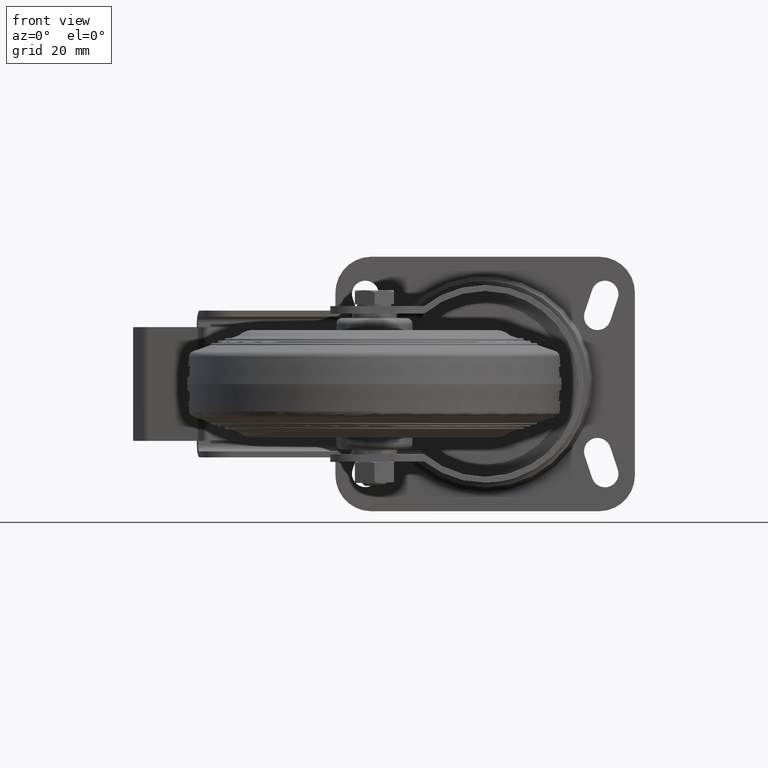
[diagram: clean part render]
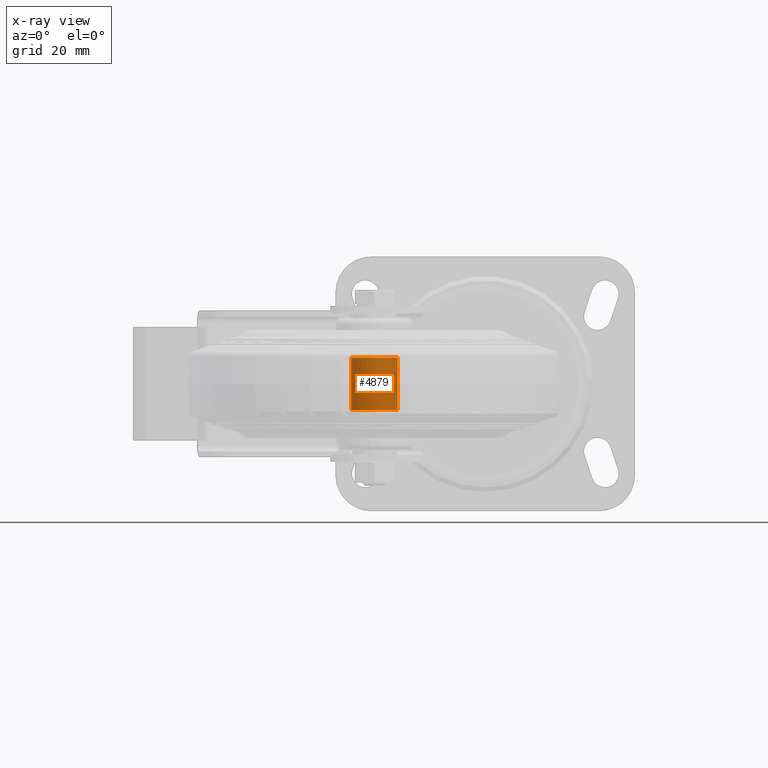
[diagram: x-ray — body ghosted, one internal face saturated and labeled with its STEP entity id]
A machine part, front view, then the same camera in x-ray: the body is ghosted and one INTERNAL B-rep face — a face not visible from any outside direction — is saturated and labeled: STEP entity #4879.
In plain terms, the highlighted cylindrical surface (bore or boss wall) has radius 7.75 mm, axis along (0, 0, -1).
Its self-contained STEP definition (entity closure, byte-faithful):
#121=CYLINDRICAL_SURFACE('',#5220,7.75);
#279=CIRCLE('',#5219,7.75);
#280=CIRCLE('',#5221,7.75);
#514=FACE_OUTER_BOUND('',#811,.T.);
#811=EDGE_LOOP('',(#3160,#3161,#3162,#3163));
#1172=LINE('',#7371,#1571);
#1571=VECTOR('',#5854,7.75);
#1986=VERTEX_POINT('',#7367);
#1987=VERTEX_POINT('',#7370);
#2444=EDGE_CURVE('',#1986,#1986,#279,.T.);
#2445=EDGE_CURVE('',#1986,#1987,#1172,.T.);
#2446=EDGE_CURVE('',#1987,#1987,#280,.T.);
#3160=ORIENTED_EDGE('',*,*,#2444,.T.);
#3161=ORIENTED_EDGE('',*,*,#2445,.T.);
#3162=ORIENTED_EDGE('',*,*,#2446,.F.);
#3163=ORIENTED_EDGE('',*,*,#2445,.F.);
#4879=ADVANCED_FACE('',(#514),#121,.F.);
#5219=AXIS2_PLACEMENT_3D('',#7368,#5850,#5851);
#5220=AXIS2_PLACEMENT_3D('',#7369,#5852,#5853);
#5221=AXIS2_PLACEMENT_3D('',#7372,#5855,#5856);
#5850=DIRECTION('center_axis',(0.,0.,1.));
#5851=DIRECTION('ref_axis',(1.,0.,0.));
#5852=DIRECTION('center_axis',(0.,0.,-1.));
#5853=DIRECTION('ref_axis',(1.,0.,0.));
#5854=DIRECTION('',(0.,0.,-1.));
#5855=DIRECTION('center_axis',(0.,0.,1.));
#5856=DIRECTION('ref_axis',(1.,0.,0.));
#7367=CARTESIAN_POINT('',(-7.75,9.49101269339199E-16,8.8));
#7368=CARTESIAN_POINT('Origin',(0.,0.,8.8));
#7369=CARTESIAN_POINT('Origin',(0.,0.,0.));
#7370=CARTESIAN_POINT('',(-7.75,9.49101269339199E-16,-8.8));
#7371=CARTESIAN_POINT('',(-7.75,9.49101269339199E-16,0.));
#7372=CARTESIAN_POINT('Origin',(0.,0.,-8.8));